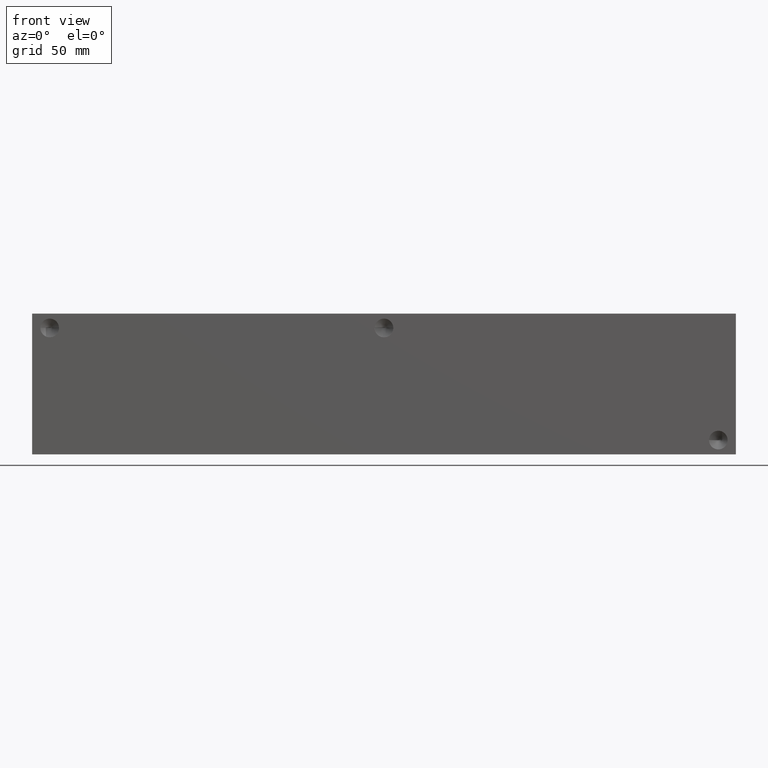
[diagram: clean part render]
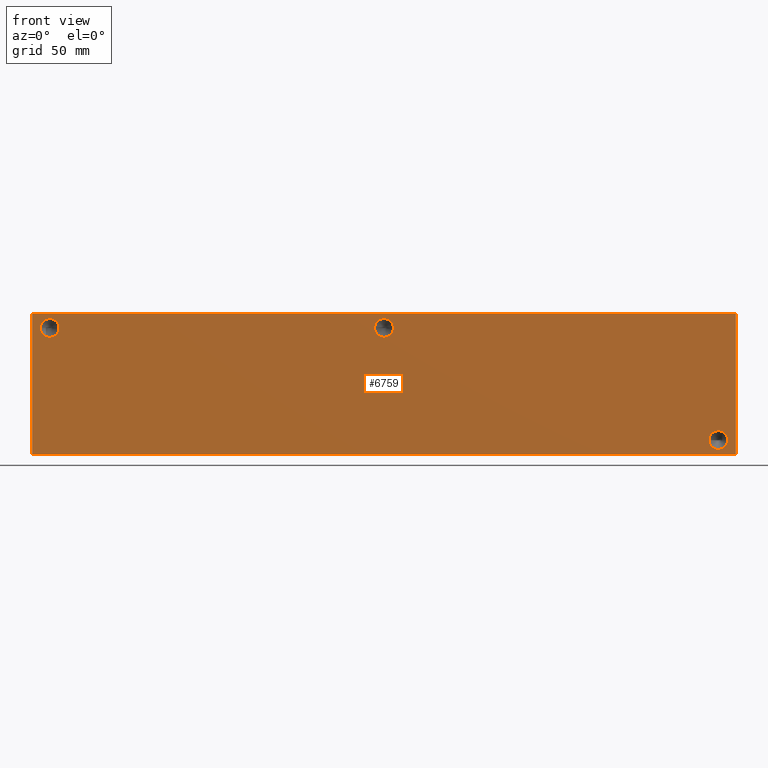
[diagram: same view with one face highlighted and labeled with its STEP entity id]
A machine part, front view. The second image highlights one B-rep face of the part: STEP entity #6759.
In plain terms, the highlighted planar face has unit normal (0, -1, 0).
Its self-contained STEP definition (entity closure, byte-faithful):
#60=CIRCLE('',#7018,6.7437);
#61=CIRCLE('',#7019,6.7437);
#64=CIRCLE('',#7024,6.7437);
#65=CIRCLE('',#7025,6.7437);
#68=CIRCLE('',#7030,6.7437);
#69=CIRCLE('',#7031,6.7437);
#154=FACE_BOUND('',#1117,.T.);
#155=FACE_BOUND('',#1118,.T.);
#156=FACE_BOUND('',#1119,.T.);
#390=PLANE('',#7105);
#731=FACE_OUTER_BOUND('',#1116,.T.);
#1116=EDGE_LOOP('',(#6039,#6040,#6041,#6042));
#1117=EDGE_LOOP('',(#6043,#6044));
#1118=EDGE_LOOP('',(#6045,#6046));
#1119=EDGE_LOOP('',(#6047,#6048));
#1405=LINE('',#10195,#2107);
#1817=LINE('',#11323,#2519);
#1822=LINE('',#11332,#2524);
#1823=LINE('',#11334,#2525);
#2107=VECTOR('',#7559,10.);
#2519=VECTOR('',#8459,10.);
#2524=VECTOR('',#8468,10.);
#2525=VECTOR('',#8471,10.);
#2954=VERTEX_POINT('',#10193);
#2955=VERTEX_POINT('',#10194);
#3237=VERTEX_POINT('',#11145);
#3238=VERTEX_POINT('',#11146);
#3242=VERTEX_POINT('',#11158);
#3243=VERTEX_POINT('',#11159);
#3247=VERTEX_POINT('',#11171);
#3248=VERTEX_POINT('',#11172);
#3299=VERTEX_POINT('',#11321);
#3301=VERTEX_POINT('',#11330);
#3719=EDGE_CURVE('',#2954,#2955,#1405,.T.);
#4133=EDGE_CURVE('',#3237,#3238,#60,.T.);
#4134=EDGE_CURVE('',#3238,#3237,#61,.T.);
#4139=EDGE_CURVE('',#3242,#3243,#64,.T.);
#4140=EDGE_CURVE('',#3243,#3242,#65,.T.);
#4145=EDGE_CURVE('',#3247,#3248,#68,.T.);
#4146=EDGE_CURVE('',#3248,#3247,#69,.T.);
#4213=EDGE_CURVE('',#3299,#2954,#1817,.T.);
#4218=EDGE_CURVE('',#3301,#2955,#1822,.T.);
#4219=EDGE_CURVE('',#3299,#3301,#1823,.T.);
#6039=ORIENTED_EDGE('',*,*,#4219,.T.);
#6040=ORIENTED_EDGE('',*,*,#4218,.T.);
#6041=ORIENTED_EDGE('',*,*,#3719,.F.);
#6042=ORIENTED_EDGE('',*,*,#4213,.F.);
#6043=ORIENTED_EDGE('',*,*,#4133,.T.);
#6044=ORIENTED_EDGE('',*,*,#4134,.T.);
#6045=ORIENTED_EDGE('',*,*,#4139,.T.);
#6046=ORIENTED_EDGE('',*,*,#4140,.T.);
#6047=ORIENTED_EDGE('',*,*,#4145,.T.);
#6048=ORIENTED_EDGE('',*,*,#4146,.T.);
#6759=ADVANCED_FACE('',(#731,#154,#155,#156),#390,.T.);
#7018=AXIS2_PLACEMENT_3D('',#11147,#8259,#8260);
#7019=AXIS2_PLACEMENT_3D('',#11148,#8261,#8262);
#7024=AXIS2_PLACEMENT_3D('',#11160,#8273,#8274);
#7025=AXIS2_PLACEMENT_3D('',#11161,#8275,#8276);
#7030=AXIS2_PLACEMENT_3D('',#11173,#8287,#8288);
#7031=AXIS2_PLACEMENT_3D('',#11174,#8289,#8290);
#7105=AXIS2_PLACEMENT_3D('',#11333,#8469,#8470);
#7559=DIRECTION('',(1.,0.,0.));
#8259=DIRECTION('center_axis',(0.,1.,0.));
#8260=DIRECTION('ref_axis',(1.,0.,0.));
#8261=DIRECTION('center_axis',(0.,1.,0.));
#8262=DIRECTION('ref_axis',(1.,0.,0.));
#8273=DIRECTION('center_axis',(0.,1.,0.));
#8274=DIRECTION('ref_axis',(1.,0.,0.));
#8275=DIRECTION('center_axis',(0.,1.,0.));
#8276=DIRECTION('ref_axis',(1.,0.,0.));
#8287=DIRECTION('center_axis',(0.,1.,0.));
#8288=DIRECTION('ref_axis',(1.,0.,0.));
#8289=DIRECTION('center_axis',(0.,1.,0.));
#8290=DIRECTION('ref_axis',(1.,0.,0.));
#8459=DIRECTION('',(0.,0.,1.));
#8468=DIRECTION('',(0.,0.,1.));
#8469=DIRECTION('center_axis',(0.,-1.,0.));
#8470=DIRECTION('ref_axis',(1.,0.,0.));
#8471=DIRECTION('',(1.,0.,0.));
#10193=CARTESIAN_POINT('',(0.,0.,101.6));
#10194=CARTESIAN_POINT('',(508.,0.,101.6));
#10195=CARTESIAN_POINT('',(0.,0.,101.6));
#11145=CARTESIAN_POINT('',(260.7437,0.,91.2876));
#11146=CARTESIAN_POINT('',(247.2563,0.,91.2876));
#11147=CARTESIAN_POINT('Origin',(254.,0.,91.2876));
#11148=CARTESIAN_POINT('Origin',(254.,0.,91.2876));
#11158=CARTESIAN_POINT('',(19.4437,0.,91.2876));
#11159=CARTESIAN_POINT('',(5.9563,0.,91.2876));
#11160=CARTESIAN_POINT('Origin',(12.7,0.,91.2876));
#11161=CARTESIAN_POINT('Origin',(12.7,0.,91.2876));
#11171=CARTESIAN_POINT('',(502.0437,0.,10.3124));
#11172=CARTESIAN_POINT('',(488.5563,0.,10.3124));
#11173=CARTESIAN_POINT('Origin',(495.3,0.,10.3124));
#11174=CARTESIAN_POINT('Origin',(495.3,0.,10.3124));
#11321=CARTESIAN_POINT('',(0.,0.,0.));
#11323=CARTESIAN_POINT('',(0.,0.,0.));
#11330=CARTESIAN_POINT('',(508.,0.,0.));
#11332=CARTESIAN_POINT('',(508.,0.,0.));
#11333=CARTESIAN_POINT('Origin',(0.,0.,0.));
#11334=CARTESIAN_POINT('',(0.,0.,0.));